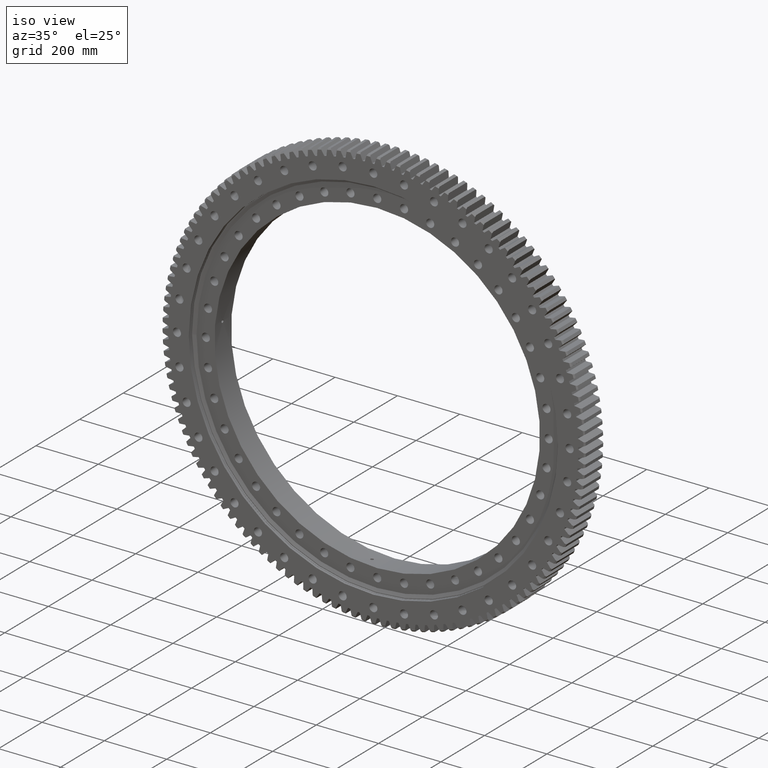
[diagram: clean part render]
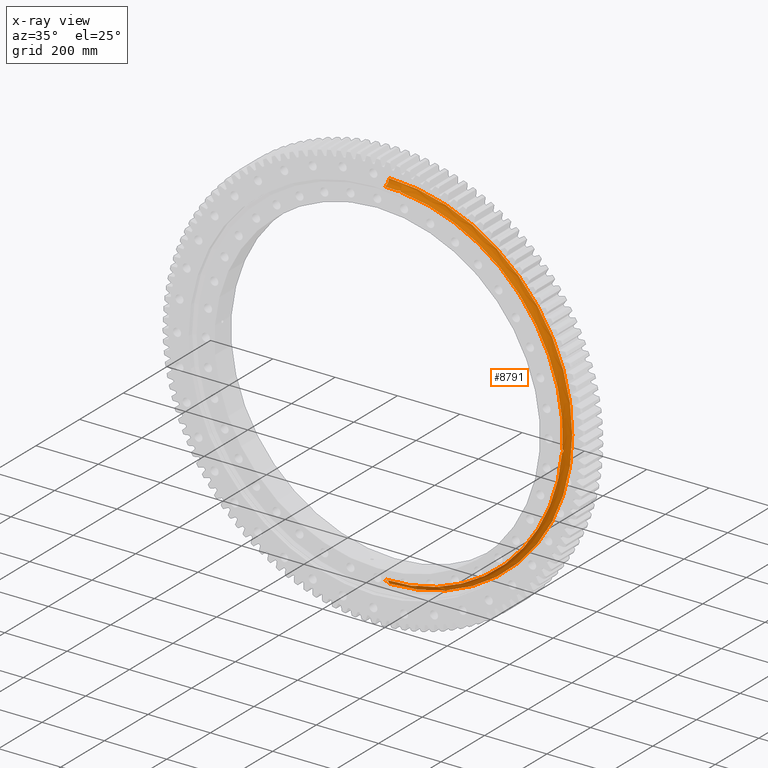
[diagram: x-ray — body ghosted, one internal face saturated and labeled with its STEP entity id]
A machine part, iso view, then the same camera in x-ray: the body is ghosted and one INTERNAL B-rep face — a face not visible from any outside direction — is saturated and labeled: STEP entity #8791.
In plain terms, the highlighted toroidal blend (fillet) surface has major radius 590 mm and minor (blend) radius 19.05 mm.
Its self-contained STEP definition (entity closure, byte-faithful):
#59 = CARTESIAN_POINT ( 'NONE',  ( 44.25060871086301300, 4.471099293108411000, 569.7663340897653400 ) ) ;
#1183 = DIRECTION ( 'NONE',  ( -0.0000000000000000000, 1.000000000000000000, -2.727064569436389700E-017 ) ) ;
#1317 = CARTESIAN_POINT ( 'NONE',  ( 40.77365997969422300, 1.999787380816228800, 569.5957982640810500 ) ) ;
#1361 = CARTESIAN_POINT ( 'NONE',  ( 49.28095732363543400, 8.722647591033160200E-009, 568.8192065544778900 ) ) ;
#1482 = DIRECTION ( 'NONE',  ( 0.0000000000000000000, 2.727064569436389700E-017, 1.000000000000000000 ) ) ;
#1841 = CARTESIAN_POINT ( 'NONE',  ( 569.6778228744482200, 2.976238061541300000, -41.43615626575628900 ) ) ;
#1953 = CARTESIAN_POINT ( 'NONE',  ( 569.4623762155706600, 4.043775943260152800, -46.81985483860634600 ) ) ;
#1994 = CARTESIAN_POINT ( 'NONE',  ( 0.0000000000000000000, -1.968018691214380300E-014, 6.362111156934219200E-032 ) ) ;
#3082 = CARTESIAN_POINT ( 'NONE',  ( 49.13874508997366800, 1.172552529171907000, 568.8655461797778800 ) ) ;
#3484 = CARTESIAN_POINT ( 'NONE',  ( 49.28095732364601400, 0.2943164346797021400, 568.8192065546123800 ) ) ;
#4070 = TOROIDAL_SURFACE ( 'NONE', #17176, 590.0000000000000000, 19.05000000000018200 ) ;
#4243 = CARTESIAN_POINT ( 'NONE',  ( 0.0000000000000000000, 18.95451067688129900, 588.0950000000000300 ) ) ;
#4638 = CARTESIAN_POINT ( 'NONE',  ( 569.7359316659485600, 3.576945236292995700, -42.08454173054906300 ) ) ;
#4768 = CARTESIAN_POINT ( 'NONE',  ( 569.3047951388153900, 3.576238038433724200, -47.56085225693020400 ) ) ;
#6000 = VERTEX_POINT ( 'NONE', #35108 ) ;
#6737 = CARTESIAN_POINT ( 'NONE',  ( 43.38311680948000100, 4.268203248591489400, 569.7848174269366800 ) ) ;
#6791 = CARTESIAN_POINT ( 'NONE',  ( 0.0000000000000000000, -1.257553800093373900E-015, 590.0000000000000000 ) ) ;
#6860 = CARTESIAN_POINT ( 'NONE',  ( 48.19438526077859600, 2.972669300642376600, 569.1453451365730400 ) ) ;
#6908 = DIRECTION ( 'NONE',  ( 1.224646799147347500E-016, 0.0000000000000000000, -1.000000000000000000 ) ) ;
#7047 = DIRECTION ( 'NONE',  ( -0.0000000000000000000, 1.000000000000000000, -2.727064569436389700E-017 ) ) ;
#7207 = CARTESIAN_POINT ( 'NONE',  ( 46.28130210160272600, 4.269665646519117200, 569.5570668342178400 ) ) ;
#7422 = CARTESIAN_POINT ( 'NONE',  ( 569.7756124147234700, 4.044165296718339200, -42.84093327714536800 ) ) ;
#7455 = CARTESIAN_POINT ( 'NONE',  ( 40.30870132003726500, 8.722706794820736600E-009, 569.5253384160286000 ) ) ;
#7519 = CARTESIAN_POINT ( 'NONE',  ( 569.1459156686547700, 2.975079865853124300, -48.19224555918257400 ) ) ;
#8791 = ADVANCED_FACE ( 'NONE', ( #18840 ), #4070, .F. ) ;
#8865 = CARTESIAN_POINT ( 'NONE',  ( 0.0000000000000000000, 18.95451067688128100, -1.363085508559178300E-015 ) ) ;
#9184 = CARTESIAN_POINT ( 'NONE',  ( 48.69584858157263300, 2.260089365641694500, 569.0030565545855600 ) ) ;
#9192 = CARTESIAN_POINT ( 'NONE',  ( 568.8192065544776600, 8.746808433540637600E-009, -49.28095732363743100 ) ) ;
#9207 = ORIENTED_EDGE ( 'NONE', *, *, #27079, .T. ) ;
#9508 = CARTESIAN_POINT ( 'NONE',  ( 7.202086593445627400E-014, 18.95451067688126300, -588.0950000000000300 ) ) ;
#9780 = CARTESIAN_POINT ( 'NONE',  ( 46.82186190787691500, 4.042928611203391800, 569.4620222474512700 ) ) ;
#10098 = CARTESIAN_POINT ( 'NONE',  ( 569.5253384161630900, 0.2952635814748334500, -40.30870132005040300 ) ) ;
#10208 = CARTESIAN_POINT ( 'NONE',  ( 569.7835617080952500, 4.354679784116585900, -43.66691210480978200 ) ) ;
#10332 = CARTESIAN_POINT ( 'NONE',  ( 569.0029867242726600, 2.259629371754551000, -48.69607447337986600 ) ) ;
#10335 = ORIENTED_EDGE ( 'NONE', *, *, #12717, .T. ) ;
#10503 = CARTESIAN_POINT ( 'NONE',  ( 43.66888291449216600, 4.355216635439100000, 569.7835375570707600 ) ) ;
#10892 = EDGE_CURVE ( 'NONE', #35557, #6000, #32207, .T. ) ;
#10941 = EDGE_CURVE ( 'NONE', #6000, #20037, #29699, .T. ) ;
#11135 = VERTEX_POINT ( 'NONE', #9192 ) ;
#11882 = CARTESIAN_POINT ( 'NONE',  ( 47.55946205639416700, 3.577254769577557600, 569.3051105738717300 ) ) ;
#12036 = CARTESIAN_POINT ( 'NONE',  ( 6.992120899731811000E-014, -1.968018691214384100E-014, -570.9499999999997000 ) ) ;
#12300 = DIRECTION ( 'NONE',  ( 0.0000000000000000000, 0.0000000000000000000, 1.000000000000000000 ) ) ;
#12717 = EDGE_CURVE ( 'NONE', #27500, #35557, #18609, .T. ) ;
#12852 = AXIS2_PLACEMENT_3D ( 'NONE', #8865, #28351, #35880 ) ;
#12909 = CARTESIAN_POINT ( 'NONE',  ( 569.5488312557179100, 1.171557921705942600, -40.45622673179377000 ) ) ;
#13035 = CARTESIAN_POINT ( 'NONE',  ( 569.7504883441789600, 4.500001858835646300, -44.54534581235654400 ) ) ;
#13146 = CARTESIAN_POINT ( 'NONE',  ( 568.8923297823877200, 1.452189306963275400, -49.05559159544187500 ) ) ;
#13499 = DIRECTION ( 'NONE',  ( -0.0000000000000000000, 1.000000000000000000, -2.727064569436389700E-017 ) ) ;
#13580 = EDGE_CURVE ( 'NONE', #32293, #30364, #32020, .T. ) ;
#14679 = DIRECTION ( 'NONE',  ( -1.000000000000000000, 0.0000000000000000000, 0.0000000000000000000 ) ) ;
#15006 = ORIENTED_EDGE ( 'NONE', *, *, #10892, .T. ) ;
#15152 = CARTESIAN_POINT ( 'NONE',  ( 41.43655969343748100, 2.976527485514938800, 569.6778518767563400 ) ) ;
#15712 = CARTESIAN_POINT ( 'NONE',  ( 569.5958500078785400, 2.000739584570116100, -40.77400460311346100 ) ) ;
#15809 = CARTESIAN_POINT ( 'NONE',  ( 569.6738295460352200, 4.471070058024160700, -45.42588711687593400 ) ) ;
#15939 = CARTESIAN_POINT ( 'NONE',  ( 568.8288585047189400, 0.5946600006809521500, -49.25182681226120000 ) ) ;
#15986 = CARTESIAN_POINT ( 'NONE',  ( 46.00271407530988900, 4.355054603732452500, 569.5998223562627300 ) ) ;
#16112 = CARTESIAN_POINT ( 'NONE',  ( 42.08251178726930400, 3.575621192269112600, 569.7358152132222800 ) ) ;
#16590 = CARTESIAN_POINT ( 'NONE',  ( 44.54300728574794700, 4.499892612052257800, 569.7506448872768500 ) ) ;
#16602 = AXIS2_PLACEMENT_3D ( 'NONE', #30136, #13499, #32926 ) ;
#16791 = VERTEX_POINT ( 'NONE', #28497 ) ;
#16822 = CARTESIAN_POINT ( 'NONE',  ( 40.30870132004797300, 0.2983913419149143400, 569.5253384161646900 ) ) ;
#17116 = EDGE_CURVE ( 'NONE', #27500, #32293, #20744, .T. ) ;
#17176 = AXIS2_PLACEMENT_3D ( 'NONE', #18883, #33040, #1482 ) ;
#17470 = CARTESIAN_POINT ( 'NONE',  ( 49.25215557346748300, 0.5929804639053720700, 568.8287518440648700 ) ) ;
#17945 = CARTESIAN_POINT ( 'NONE',  ( 40.54395483901236500, 1.455271585762918200, 569.5624862083515200 ) ) ;
#17990 = CARTESIAN_POINT ( 'NONE',  ( 7.225416114969383800E-014, -3.343691571944276800E-014, -590.0000000000000000 ) ) ;
#18102 = CARTESIAN_POINT ( 'NONE',  ( 0.0000000000000000000, -1.968018691214374900E-014, 570.9499999999997000 ) ) ;
#18486 = CARTESIAN_POINT ( 'NONE',  ( 569.6562619376680900, 2.746608111819724300, -41.24530989286113700 ) ) ;
#18609 = CIRCLE ( 'NONE', #27985, 19.05000000000023200 ) ;
#18617 = CARTESIAN_POINT ( 'NONE',  ( 569.5567375892042000, 4.268877292793910700, -46.28316855824995500 ) ) ;
#18745 = CARTESIAN_POINT ( 'NONE',  ( 568.8192065544776600, 8.746808433540637600E-009, -49.28095732363743100 ) ) ;
#18840 = FACE_OUTER_BOUND ( 'NONE', #30924, .T. ) ;
#18883 = CARTESIAN_POINT ( 'NONE',  ( 0.0000000000000000000, -1.734723475976807100E-014, 0.0000000000000000000 ) ) ;
#18885 = CARTESIAN_POINT ( 'NONE',  ( 40.45549998646399800, 1.168847712045717500, 569.5487179645339200 ) ) ;
#19024 = ORIENTED_EDGE ( 'NONE', *, *, #17116, .F. ) ;
#19616 = DIRECTION ( 'NONE',  ( 0.0000000000000000000, 2.727064569436390000E-017, 1.000000000000000000 ) ) ;
#19727 = CARTESIAN_POINT ( 'NONE',  ( 49.05506490816596000, 1.453156037798134100, 568.8924889474147900 ) ) ;
#19773 = AXIS2_PLACEMENT_3D ( 'NONE', #1994, #1183, #19616 ) ;
#20037 = VERTEX_POINT ( 'NONE', #1361 ) ;
#20213 = CARTESIAN_POINT ( 'NONE',  ( 47.08005553525708800, 3.902587794693687300, 569.4103164079596100 ) ) ;
#20278 = ORIENTED_EDGE ( 'NONE', *, *, #13580, .F. ) ;
#20384 = CARTESIAN_POINT ( 'NONE',  ( 41.85449928643578900, 3.389763558117163900, 569.7175208906934400 ) ) ;
#20744 = CIRCLE ( 'NONE', #12852, 588.0950000000000300 ) ;
#21303 = CARTESIAN_POINT ( 'NONE',  ( 569.7177121183606200, 3.391742848046190000, -41.85661226552149100 ) ) ;
#21417 = CARTESIAN_POINT ( 'NONE',  ( 569.4102985949298300, 3.902573876636353100, -47.08018374526864100 ) ) ;
#21567 = CARTESIAN_POINT ( 'NONE',  ( 45.13077290364709200, 4.500106811439418500, 569.7044406547486200 ) ) ;
#21699 = CARTESIAN_POINT ( 'NONE',  ( 41.24497743490388000, 2.746318705802255800, 569.6562288747102200 ) ) ;
#22862 = CIRCLE ( 'NONE', #16602, 570.9499999999997000 ) ;
#22905 = CARTESIAN_POINT ( 'NONE',  ( 40.91399039632393900, 2.257879260200211100, 569.6152159562954000 ) ) ;
#23436 = CARTESIAN_POINT ( 'NONE',  ( 42.83966223198542200, 4.043501020470187300, 569.7755636274772500 ) ) ;
#23744 = CARTESIAN_POINT ( 'NONE',  ( 0.0000000000000000000, -1.968018691214380300E-014, 6.362111156934219200E-032 ) ) ;
#24105 = CARTESIAN_POINT ( 'NONE',  ( 569.7649064935088700, 3.902957721191827400, -42.57553979290375400 ) ) ;
#24149 = CARTESIAN_POINT ( 'NONE',  ( 49.28095732363543400, 8.722647591033160200E-009, 568.8192065544778900 ) ) ;
#24231 = CARTESIAN_POINT ( 'NONE',  ( 569.2511160666770100, 3.390873144420023100, -47.78318479649053100 ) ) ;
#25220 = CARTESIAN_POINT ( 'NONE',  ( 45.42876410442993800, 4.470525702086519900, 569.6734685407798200 ) ) ;
#25872 = CARTESIAN_POINT ( 'NONE',  ( 48.83432590262393100, 1.996409980749806600, 568.9610504719637400 ) ) ;
#26335 = CARTESIAN_POINT ( 'NONE',  ( 48.37633612250999000, 2.746667530382509000, 569.0950440837262900 ) ) ;
#26390 = DIRECTION ( 'NONE',  ( 1.000000000000000000, 3.339690896028429500E-033, 1.224646799147353200E-016 ) ) ;
#26545 = DIRECTION ( 'NONE',  ( 0.0000000000000000000, 2.727064569436390000E-017, 1.000000000000000000 ) ) ;
#26782 = CARTESIAN_POINT ( 'NONE',  ( 569.5253384160283800, 8.731024552579816800E-009, -40.30870132003924800 ) ) ;
#26893 = CARTESIAN_POINT ( 'NONE',  ( 569.7848311289889100, 4.269059876266048500, -43.38552642897826700 ) ) ;
#26983 = EDGE_CURVE ( 'NONE', #20037, #16791, #33712, .T. ) ;
#27018 = CARTESIAN_POINT ( 'NONE',  ( 569.0948038730171000, 2.745487222712420300, -48.37718708105990800 ) ) ;
#27034 = EDGE_CURVE ( 'NONE', #16791, #11135, #34342, .T. ) ;
#27079 = EDGE_CURVE ( 'NONE', #11135, #30364, #22862, .T. ) ;
#27500 = VERTEX_POINT ( 'NONE', #4243 ) ;
#27985 = AXIS2_PLACEMENT_3D ( 'NONE', #6791, #14679, #12300 ) ;
#28351 = DIRECTION ( 'NONE',  ( -0.0000000000000000000, 1.000000000000000000, -2.727064569436389700E-017 ) ) ;
#28497 = CARTESIAN_POINT ( 'NONE',  ( 569.5253384160283800, 8.731024552579816800E-009, -40.30870132003924800 ) ) ;
#29000 = ORIENTED_EDGE ( 'NONE', *, *, #27034, .T. ) ;
#29126 = ORIENTED_EDGE ( 'NONE', *, *, #10941, .T. ) ;
#29566 = CARTESIAN_POINT ( 'NONE',  ( 569.5303058115069900, 0.5944684926611910600, -40.33892703163565600 ) ) ;
#29644 = AXIS2_PLACEMENT_3D ( 'NONE', #17990, #26390, #6908 ) ;
#29683 = CARTESIAN_POINT ( 'NONE',  ( 569.7664344425070300, 4.470794781589802400, -44.24836115095634900 ) ) ;
#29699 = B_SPLINE_CURVE_WITH_KNOTS ( 'NONE', 3,
 ( #7455, #16822, #34490, #18885, #17945, #1317, #22905, #21699, #15152, #20384, #16112, #31798, #23436, #6737, #10503, #59, #16590, #21567, #25220, #15986, #7207, #9780, #20213, #11882, #35678, #6860, #26335, #9184, #25872, #19727, #3082, #17470, #3484, #24149 ),
 .UNSPECIFIED., .F., .F.,
 ( 4, 2, 2, 2, 2, 2, 2, 2, 2, 2, 2, 2, 2, 2, 2, 2, 4 ),
 ( 0.002995077572589081300, 0.003877869474579374000, 0.004760661376569667200, 0.005643453278559959500, 0.006526245180550252700, 0.007409037082540545800, 0.008291828984530838200, 0.009174620886521130500, 0.01005741278851142500, 0.01094020469050171700, 0.01182299659249200900, 0.01270578849448230100, 0.01358858039647259500, 0.01447137229846288800, 0.01535416420045318000, 0.01623695610244347400, 0.01711974800443376600 ),
 .UNSPECIFIED. ) ;
#29794 = CARTESIAN_POINT ( 'NONE',  ( 568.9616560779145400, 2.000912226761683700, -48.83236177307159700 ) ) ;
#30136 = CARTESIAN_POINT ( 'NONE',  ( 0.0000000000000000000, -1.968018691214380300E-014, 6.362111156934219200E-032 ) ) ;
#30364 = VERTEX_POINT ( 'NONE', #12036 ) ;
#30866 = ORIENTED_EDGE ( 'NONE', *, *, #26983, .T. ) ;
#30924 = EDGE_LOOP ( 'NONE', ( #10335, #15006, #29126, #30866, #29000, #9207, #20278, #19024 ) ) ;
#31798 = CARTESIAN_POINT ( 'NONE',  ( 42.57807766098328300, 3.904618992301777800, 569.7650529165222200 ) ) ;
#32020 = CIRCLE ( 'NONE', #29644, 19.05000000000023200 ) ;
#32207 = CIRCLE ( 'NONE', #19773, 570.9499999999997000 ) ;
#32293 = VERTEX_POINT ( 'NONE', #9508 ) ;
#32326 = CARTESIAN_POINT ( 'NONE',  ( 569.5623451392288000, 1.452858994475948500, -40.54299430034371500 ) ) ;
#32449 = CARTESIAN_POINT ( 'NONE',  ( 569.7043363601155800, 4.499998158448735600, -45.13175053407196200 ) ) ;
#32567 = CARTESIAN_POINT ( 'NONE',  ( 568.8654393090496300, 1.170869683376312800, -49.13907449869132200 ) ) ;
#32926 = DIRECTION ( 'NONE',  ( 0.0000000000000000000, 2.727064569436390000E-017, 1.000000000000000000 ) ) ;
#33040 = DIRECTION ( 'NONE',  ( -0.0000000000000000000, 1.000000000000000000, -2.727064569436389700E-017 ) ) ;
#33712 = CIRCLE ( 'NONE', #35916, 570.9499999999997000 ) ;
#34342 = B_SPLINE_CURVE_WITH_KNOTS ( 'NONE', 3,
 ( #26782, #10098, #29566, #12909, #32326, #15712, #35155, #18486, #1841, #21303, #4638, #24105, #7422, #26893, #10208, #29683, #13035, #32449, #15809, #35289, #18617, #1953, #21417, #4768, #24231, #7519, #27018, #10332, #29794, #13146, #32567, #15939, #35396, #18745 ),
 .UNSPECIFIED., .F., .F.,
 ( 4, 2, 2, 2, 2, 2, 2, 2, 2, 2, 2, 2, 2, 2, 2, 2, 4 ),
 ( 0.01320788355124719600, 0.01409021015282051200, 0.01497253675439382700, 0.01585486335596714100, 0.01673718995754045600, 0.01761951655911377100, 0.01850184316068708900, 0.01938416976226040400, 0.02026649636383371900, 0.02114882296540703700, 0.02203114956698035100, 0.02291347616855366600, 0.02379580277012698100, 0.02467812937170029600, 0.02556045597327361000, 0.02644278257484692500, 0.02732510917642024000 ),
 .UNSPECIFIED. ) ;
#34490 = CARTESIAN_POINT ( 'NONE',  ( 40.33861437580036800, 0.5920573539390896500, 569.5302549341154200 ) ) ;
#35108 = CARTESIAN_POINT ( 'NONE',  ( 40.30870132003726500, 8.722706794820736600E-009, 569.5253384160286000 ) ) ;
#35155 = CARTESIAN_POINT ( 'NONE',  ( 569.6154235609088800, 2.260455448316867500, -40.91560058626087900 ) ) ;
#35289 = CARTESIAN_POINT ( 'NONE',  ( 569.5995886385624100, 4.354709786986503200, -46.00459895844839800 ) ) ;
#35396 = CARTESIAN_POINT ( 'NONE',  ( 568.8192065546140800, 0.2966010890642145600, -49.28095732364654000 ) ) ;
#35557 = VERTEX_POINT ( 'NONE', #18102 ) ;
#35678 = CARTESIAN_POINT ( 'NONE',  ( 47.78454377160117900, 3.389725447510775000, 569.2507866527352000 ) ) ;
#35880 = DIRECTION ( 'NONE',  ( 0.0000000000000000000, 2.949733420581380700E-017, 1.000000000000000000 ) ) ;
#35916 = AXIS2_PLACEMENT_3D ( 'NONE', #23744, #7047, #26545 ) ;